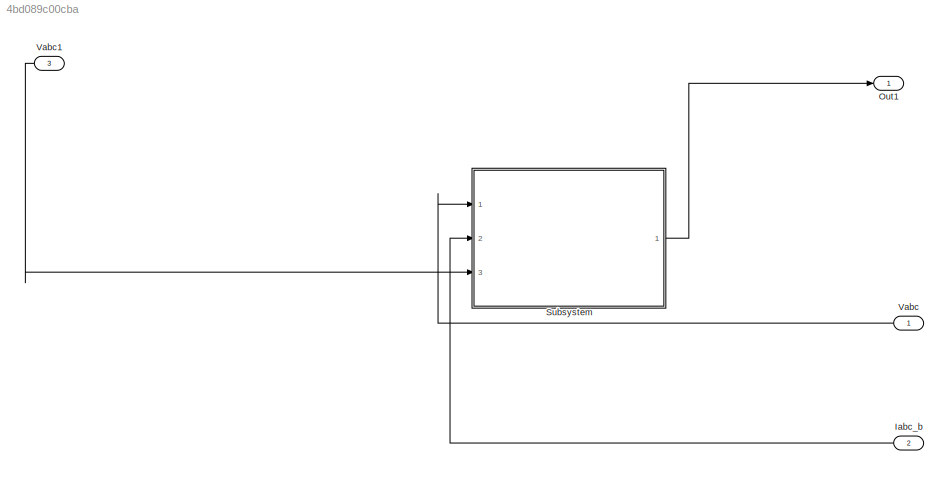
MODEL slx_4bd089c00cba
KIND model
BLOCK [Inport] Iabc_b
  IconDisplay = Port number
  Port = 2
BLOCK [Outport] Out1
  IconDisplay = Port number and signal name
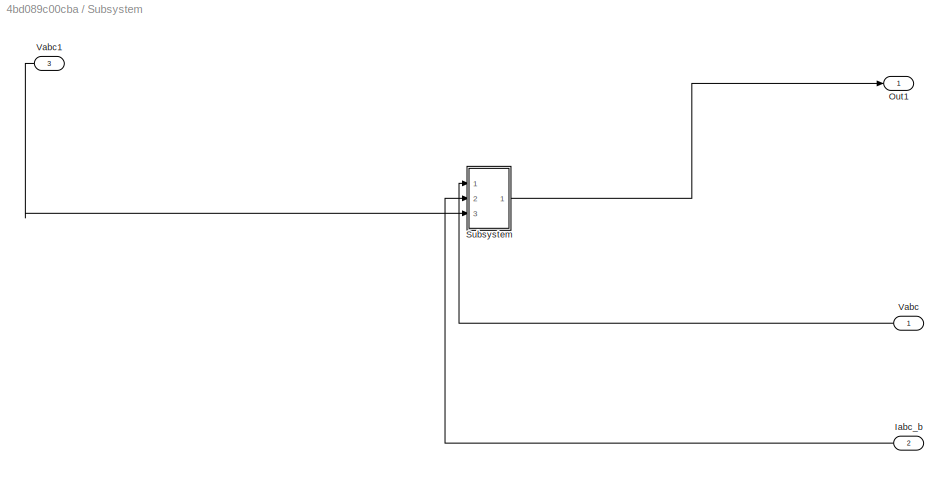
BLOCK [SubSystem] Subsystem
  Ports = [3, 1]
  RequestExecContextInheritance = off
BLOCK [Inport] Subsystem/Iabc_b
  IconDisplay = Port number
  Port = 2
BLOCK [Outport] Subsystem/Out1
  IconDisplay = Port number and signal name
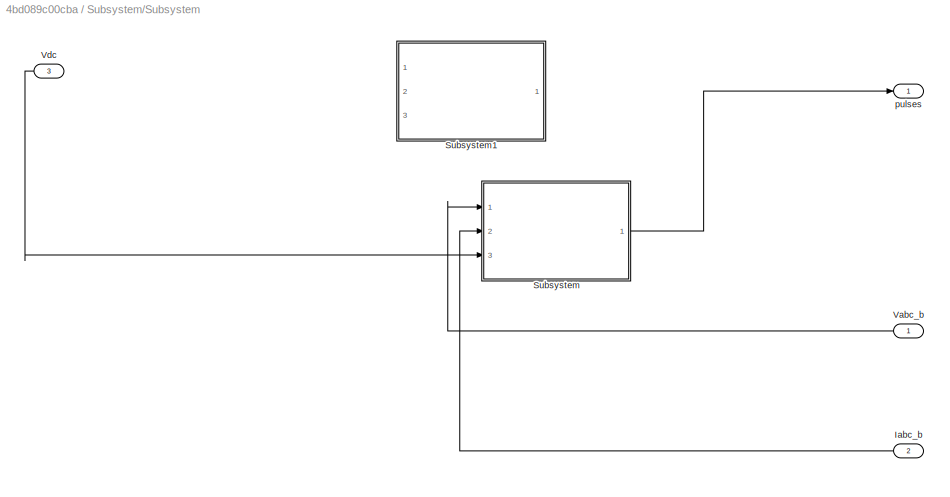
BLOCK [SubSystem] Subsystem/Subsystem
  Ports = [3, 1]
  RequestExecContextInheritance = off
BLOCK [Inport] Subsystem/Subsystem/ Vabc_b
  IconDisplay = Port number
BLOCK [Inport] Subsystem/Subsystem/Iabc_b
  IconDisplay = Port number
  Port = 2
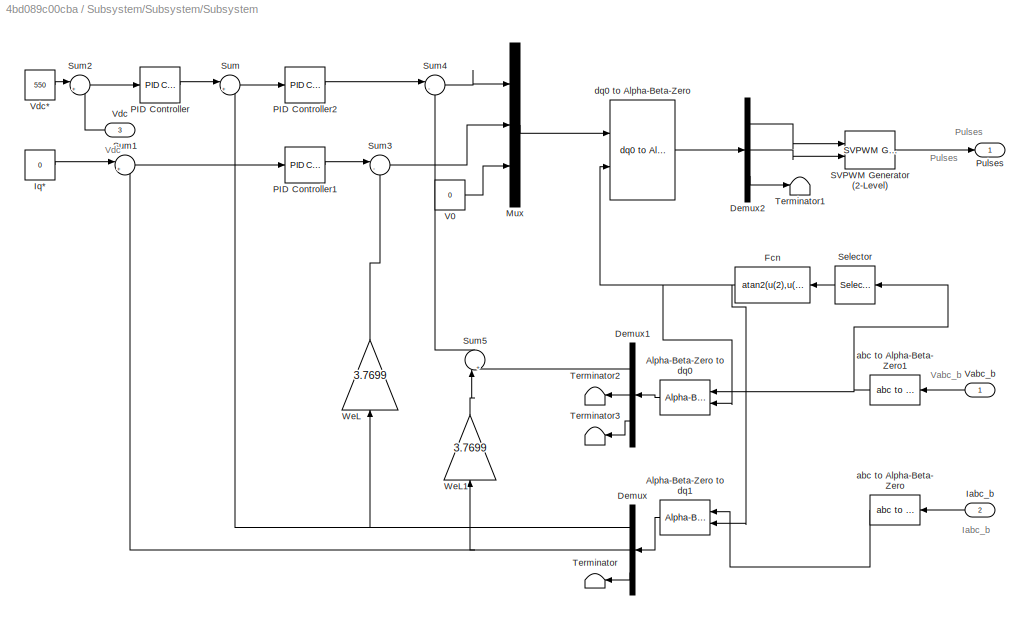
BLOCK [SubSystem] Subsystem/Subsystem/Subsystem
  Ports = [3, 1]
  RequestExecContextInheritance = off
BLOCK [Reference] Subsystem/Subsystem/Subsystem/Alpha-Beta-Zero to dq0  REF=powerlib_meascontrol/Transformations/Alpha-Beta-Zero
to dq0
  Alignment = Aligned with phase A axis
  Ports = [2, 1]
  SourceBlock = powerlib_meascontrol/Transformations/Alpha-Beta-Zero\nto dq0
  SourceType = Alpha-Beta-Zero to dq0 Transformation
BLOCK [Reference] Subsystem/Subsystem/Subsystem/Alpha-Beta-Zero to dq1  REF=powerlib_meascontrol/Transformations/Alpha-Beta-Zero
to dq0
  Alignment = Aligned with phase A axis
  Ports = [2, 1]
  SourceBlock = powerlib_meascontrol/Transformations/Alpha-Beta-Zero\nto dq0
  SourceType = Alpha-Beta-Zero to dq0 Transformation
BLOCK [Demux] Subsystem/Subsystem/Subsystem/Demux
  DisplayOption = bar
  Outputs = 3
  Ports = [1, 3]
BLOCK [Demux] Subsystem/Subsystem/Subsystem/Demux1
  DisplayOption = bar
  Outputs = 3
  Ports = [1, 3]
BLOCK [Demux] Subsystem/Subsystem/Subsystem/Demux2
  DisplayOption = bar
  Outputs = 3
  Ports = [1, 3]
BLOCK [Fcn] Subsystem/Subsystem/Subsystem/Fcn
  Expr = atan2(u(2),u(1))
BLOCK [Inport] Subsystem/Subsystem/Subsystem/Iabc_b
  IconDisplay = Port number
  Port = 2
BLOCK [Constant] Subsystem/Subsystem/Subsystem/Iq*
  Value = 0
BLOCK [Mux] Subsystem/Subsystem/Subsystem/Mux
  DisplayOption = bar
  Inputs = 3
  Ports = [3, 1]
BLOCK [Reference] Subsystem/Subsystem/Subsystem/PID Controller  REF=simulink/Continuous/PID Controller
  AntiWindupMode = none
  Controller = PI
  D = 0
  DOutDataTypeStr = Inherit: Inherit via internal rule
  DOutMax = []
  DOutMin = []
  DParamDataTypeStr = Inherit: Inherit via internal rule
  DParamMax = []
  DParamMin = []
  ExternalReset = none
  FilterContinuousStateAttributes = ''
  FilterMethod = Forward Euler
  FilterOutDataTypeStr = Inherit: Inherit via internal rule
  FilterOutMax = []
  FilterOutMin = []
  FilterRTWStateStorageClass = Auto
  FilterStateMustResolveToSignalObject = off
  Form = Parallel
  I = 1
  IOutDataTypeStr = Inherit: Inherit via internal rule
  IOutMax = []
  IOutMin = []
  IParamDataTypeStr = Inherit: Inherit via internal rule
  IParamMax = []
  IParamMin = []
  IgnoreLimit = off
  InitialConditionForFilter = 0
  InitialConditionForIntegrator = 0
  InitialConditionSource = internal
  IntegratorContinuousStateAttributes = ''
  IntegratorMethod = Forward Euler
  IntegratorOutDataTypeStr = Inherit: Inherit via internal rule
  IntegratorOutMax = []
  IntegratorOutMin = []
  IntegratorRTWStateStorageClass = Auto
  IntegratorStateMustResolveToSignalObject = off
  Kb = 1
  KbOutDataTypeStr = Inherit: Inherit via internal rule
  KbOutMax = []
  KbOutMin = []
  KbParamDataTypeStr = Inherit: Inherit via internal rule
  KbParamMax = []
  KbParamMin = []
  Kt = 1
  KtOutDataTypeStr = Inherit: Inherit via internal rule
  KtOutMax = []
  KtOutMin = []
  KtParamDataTypeStr = Inherit: Inherit via internal rule
  KtParamMax = []
  KtParamMin = []
  LimitOutput = off
  LinearizeAsGain = on
  LockScale = off
  LowerSaturationLimit = -inf
  N = 100
  NOutDataTypeStr = Inherit: Inherit via internal rule
  NOutMax = []
  NOutMin = []
  NParamDataTypeStr = Inherit: Inherit via internal rule
  NParamMax = []
  NParamMin = []
  P = 1
  POutDataTypeStr = Inherit: Inherit via internal rule
  POutMax = []
  POutMin = []
  PParamDataTypeStr = Inherit: Inherit via internal rule
  PParamMax = []
  PParamMin = []
  Ports = [1, 1]
  RndMeth = Floor
  SampleTime = 1
  SaturateOnIntegerOverflow = off
  SaturationOutDataTypeStr = Inherit: Same as input
  SaturationOutMax = []
  SaturationOutMin = []
  SourceBlock = simulink/Continuous/PID Controller
  SourceType = PID 1dof
  SumAccumDataTypeStr = Inherit: Inherit via internal rule
  SumDAccumDataTypeStr = Inherit: Inherit via internal rule
  SumDOutDataTypeStr = Inherit: Inherit via internal rule
  SumDOutMax = []
  SumDOutMin = []
  SumI1AccumDataTypeStr = Inherit: Inherit via internal rule
  SumI1OutDataTypeStr = Inherit: Inherit via internal rule
  SumI1OutMax = []
  SumI1OutMin = []
  SumI2AccumDataTypeStr = Inherit: Inherit via internal rule
  SumI2OutDataTypeStr = Inherit: Inherit via internal rule
  SumI2OutMax = []
  SumI2OutMin = []
  SumI3AccumDataTypeStr = Inherit: Inherit via internal rule
  SumI3OutDataTypeStr = Inherit: Inherit via internal rule
  SumI3OutMax = []
  SumI3OutMin = []
  SumOutDataTypeStr = Inherit: Inherit via internal rule
  SumOutMax = []
  SumOutMin = []
  TimeDomain = Continuous-time
  TrackingMode = off
  UpperSaturationLimit = inf
  ZeroCross = on
BLOCK [Reference] Subsystem/Subsystem/Subsystem/PID Controller1  REF=simulink/Continuous/PID Controller
  AntiWindupMode = none
  Controller = PI
  D = 0
  DOutDataTypeStr = Inherit: Inherit via internal rule
  DOutMax = []
  DOutMin = []
  DParamDataTypeStr = Inherit: Inherit via internal rule
  DParamMax = []
  DParamMin = []
  ExternalReset = none
  FilterContinuousStateAttributes = ''
  FilterMethod = Forward Euler
  FilterOutDataTypeStr = Inherit: Inherit via internal rule
  FilterOutMax = []
  FilterOutMin = []
  FilterRTWStateStorageClass = Auto
  FilterStateMustResolveToSignalObject = off
  Form = Parallel
  I = 1
  IOutDataTypeStr = Inherit: Inherit via internal rule
  IOutMax = []
  IOutMin = []
  IParamDataTypeStr = Inherit: Inherit via internal rule
  IParamMax = []
  IParamMin = []
  IgnoreLimit = off
  InitialConditionForFilter = 0
  InitialConditionForIntegrator = 0
  InitialConditionSource = internal
  IntegratorContinuousStateAttributes = ''
  IntegratorMethod = Forward Euler
  IntegratorOutDataTypeStr = Inherit: Inherit via internal rule
  IntegratorOutMax = []
  IntegratorOutMin = []
  IntegratorRTWStateStorageClass = Auto
  IntegratorStateMustResolveToSignalObject = off
  Kb = 1
  KbOutDataTypeStr = Inherit: Inherit via internal rule
  KbOutMax = []
  KbOutMin = []
  KbParamDataTypeStr = Inherit: Inherit via internal rule
  KbParamMax = []
  KbParamMin = []
  Kt = 1
  KtOutDataTypeStr = Inherit: Inherit via internal rule
  KtOutMax = []
  KtOutMin = []
  KtParamDataTypeStr = Inherit: Inherit via internal rule
  KtParamMax = []
  KtParamMin = []
  LimitOutput = off
  LinearizeAsGain = on
  LockScale = off
  LowerSaturationLimit = -inf
  N = 100
  NOutDataTypeStr = Inherit: Inherit via internal rule
  NOutMax = []
  NOutMin = []
  NParamDataTypeStr = Inherit: Inherit via internal rule
  NParamMax = []
  NParamMin = []
  P = 1
  POutDataTypeStr = Inherit: Inherit via internal rule
  POutMax = []
  POutMin = []
  PParamDataTypeStr = Inherit: Inherit via internal rule
  PParamMax = []
  PParamMin = []
  Ports = [1, 1]
  RndMeth = Floor
  SampleTime = 1
  SaturateOnIntegerOverflow = off
  SaturationOutDataTypeStr = Inherit: Same as input
  SaturationOutMax = []
  SaturationOutMin = []
  SourceBlock = simulink/Continuous/PID Controller
  SourceType = PID 1dof
  SumAccumDataTypeStr = Inherit: Inherit via internal rule
  SumDAccumDataTypeStr = Inherit: Inherit via internal rule
  SumDOutDataTypeStr = Inherit: Inherit via internal rule
  SumDOutMax = []
  SumDOutMin = []
  SumI1AccumDataTypeStr = Inherit: Inherit via internal rule
  SumI1OutDataTypeStr = Inherit: Inherit via internal rule
  SumI1OutMax = []
  SumI1OutMin = []
  SumI2AccumDataTypeStr = Inherit: Inherit via internal rule
  SumI2OutDataTypeStr = Inherit: Inherit via internal rule
  SumI2OutMax = []
  SumI2OutMin = []
  SumI3AccumDataTypeStr = Inherit: Inherit via internal rule
  SumI3OutDataTypeStr = Inherit: Inherit via internal rule
  SumI3OutMax = []
  SumI3OutMin = []
  SumOutDataTypeStr = Inherit: Inherit via internal rule
  SumOutMax = []
  SumOutMin = []
  TimeDomain = Continuous-time
  TrackingMode = off
  UpperSaturationLimit = inf
  ZeroCross = on
BLOCK [Reference] Subsystem/Subsystem/Subsystem/PID Controller2  REF=simulink/Continuous/PID Controller
  AntiWindupMode = none
  Controller = PI
  D = 0
  DOutDataTypeStr = Inherit: Inherit via internal rule
  DOutMax = []
  DOutMin = []
  DParamDataTypeStr = Inherit: Inherit via internal rule
  DParamMax = []
  DParamMin = []
  ExternalReset = none
  FilterContinuousStateAttributes = ''
  FilterMethod = Forward Euler
  FilterOutDataTypeStr = Inherit: Inherit via internal rule
  FilterOutMax = []
  FilterOutMin = []
  FilterRTWStateStorageClass = Auto
  FilterStateMustResolveToSignalObject = off
  Form = Parallel
  I = 1
  IOutDataTypeStr = Inherit: Inherit via internal rule
  IOutMax = []
  IOutMin = []
  IParamDataTypeStr = Inherit: Inherit via internal rule
  IParamMax = []
  IParamMin = []
  IgnoreLimit = off
  InitialConditionForFilter = 0
  InitialConditionForIntegrator = 0
  InitialConditionSource = internal
  IntegratorContinuousStateAttributes = ''
  IntegratorMethod = Forward Euler
  IntegratorOutDataTypeStr = Inherit: Inherit via internal rule
  IntegratorOutMax = []
  IntegratorOutMin = []
  IntegratorRTWStateStorageClass = Auto
  IntegratorStateMustResolveToSignalObject = off
  Kb = 1
  KbOutDataTypeStr = Inherit: Inherit via internal rule
  KbOutMax = []
  KbOutMin = []
  KbParamDataTypeStr = Inherit: Inherit via internal rule
  KbParamMax = []
  KbParamMin = []
  Kt = 1
  KtOutDataTypeStr = Inherit: Inherit via internal rule
  KtOutMax = []
  KtOutMin = []
  KtParamDataTypeStr = Inherit: Inherit via internal rule
  KtParamMax = []
  KtParamMin = []
  LimitOutput = off
  LinearizeAsGain = on
  LockScale = off
  LowerSaturationLimit = -inf
  N = 100
  NOutDataTypeStr = Inherit: Inherit via internal rule
  NOutMax = []
  NOutMin = []
  NParamDataTypeStr = Inherit: Inherit via internal rule
  NParamMax = []
  NParamMin = []
  P = 1
  POutDataTypeStr = Inherit: Inherit via internal rule
  POutMax = []
  POutMin = []
  PParamDataTypeStr = Inherit: Inherit via internal rule
  PParamMax = []
  PParamMin = []
  Ports = [1, 1]
  RndMeth = Floor
  SampleTime = 1
  SaturateOnIntegerOverflow = off
  SaturationOutDataTypeStr = Inherit: Same as input
  SaturationOutMax = []
  SaturationOutMin = []
  SourceBlock = simulink/Continuous/PID Controller
  SourceType = PID 1dof
  SumAccumDataTypeStr = Inherit: Inherit via internal rule
  SumDAccumDataTypeStr = Inherit: Inherit via internal rule
  SumDOutDataTypeStr = Inherit: Inherit via internal rule
  SumDOutMax = []
  SumDOutMin = []
  SumI1AccumDataTypeStr = Inherit: Inherit via internal rule
  SumI1OutDataTypeStr = Inherit: Inherit via internal rule
  SumI1OutMax = []
  SumI1OutMin = []
  SumI2AccumDataTypeStr = Inherit: Inherit via internal rule
  SumI2OutDataTypeStr = Inherit: Inherit via internal rule
  SumI2OutMax = []
  SumI2OutMin = []
  SumI3AccumDataTypeStr = Inherit: Inherit via internal rule
  SumI3OutDataTypeStr = Inherit: Inherit via internal rule
  SumI3OutMax = []
  SumI3OutMin = []
  SumOutDataTypeStr = Inherit: Inherit via internal rule
  SumOutMax = []
  SumOutMin = []
  TimeDomain = Continuous-time
  TrackingMode = off
  UpperSaturationLimit = inf
  ZeroCross = on
BLOCK [Outport] Subsystem/Subsystem/Subsystem/Pulses
  IconDisplay = Port number
BLOCK [Reference] Subsystem/Subsystem/Subsystem/SVPWM Generator (2-Level)  REF=powerlib_meascontrol/Pulse & Signal
Generators/SVPWM Generator
(2-Level)
  Fc = 27*50
  InputType = alpha-beta components
  ParUref = [0.8 -30 50]
  Ports = [2, 1]
  SourceBlock = powerlib_meascontrol/Pulse & Signal\nGenerators/SVPWM Generator\n(2-Level)
  SourceType = SVPWM Generator (2-Level)
  SwitchingPattern = Pattern #1
  Ts = 0
BLOCK [Selector] Subsystem/Subsystem/Subsystem/Selector
  Indices = [1 2]
  InputPortWidth = 3
  Ports = [1, 1]
BLOCK [Sum] Subsystem/Subsystem/Subsystem/Sum
  IconShape = round
  InputSameDT = off
  Inputs = |+-
  OutDataTypeStr = Inherit: Inherit via internal rule
  Ports = [2, 1]
  SaturateOnIntegerOverflow = off
BLOCK [Sum] Subsystem/Subsystem/Subsystem/Sum1
  IconShape = round
  InputSameDT = off
  Inputs = |+-
  OutDataTypeStr = Inherit: Inherit via internal rule
  Ports = [2, 1]
  SaturateOnIntegerOverflow = off
BLOCK [Sum] Subsystem/Subsystem/Subsystem/Sum2
  IconShape = round
  InputSameDT = off
  Inputs = |+-
  OutDataTypeStr = Inherit: Inherit via internal rule
  Ports = [2, 1]
  SaturateOnIntegerOverflow = off
BLOCK [Sum] Subsystem/Subsystem/Subsystem/Sum3
  IconShape = round
  InputSameDT = off
  Inputs = |--
  OutDataTypeStr = Inherit: Inherit via internal rule
  Ports = [2, 1]
  SaturateOnIntegerOverflow = off
BLOCK [Sum] Subsystem/Subsystem/Subsystem/Sum4
  IconShape = round
  InputSameDT = off
  Inputs = |-+
  OutDataTypeStr = Inherit: Inherit via internal rule
  Ports = [2, 1]
  SaturateOnIntegerOverflow = off
BLOCK [Sum] Subsystem/Subsystem/Subsystem/Sum5
  IconShape = round
  InputSameDT = off
  Inputs = |++
  OutDataTypeStr = Inherit: Inherit via internal rule
  Ports = [2, 1]
  SaturateOnIntegerOverflow = off
BLOCK [Terminator] Subsystem/Subsystem/Subsystem/Terminator
BLOCK [Terminator] Subsystem/Subsystem/Subsystem/Terminator1
BLOCK [Terminator] Subsystem/Subsystem/Subsystem/Terminator2
BLOCK [Terminator] Subsystem/Subsystem/Subsystem/Terminator3
BLOCK [Constant] Subsystem/Subsystem/Subsystem/V0
  Value = 0
BLOCK [Inport] Subsystem/Subsystem/Subsystem/Vabc_b
  IconDisplay = Port number
BLOCK [Inport] Subsystem/Subsystem/Subsystem/Vdc
  IconDisplay = Port number
  Port = 3
BLOCK [Constant] Subsystem/Subsystem/Subsystem/Vdc*
  Value = 550
BLOCK [Gain] Subsystem/Subsystem/Subsystem/WeL
  Gain = 3.7699
  OutDataTypeStr = Inherit: Inherit via internal rule
  ParamDataTypeStr = Inherit: Inherit via internal rule
  SaturateOnIntegerOverflow = off
BLOCK [Gain] Subsystem/Subsystem/Subsystem/WeL1
  Gain = 3.7699
  OutDataTypeStr = Inherit: Inherit via internal rule
  ParamDataTypeStr = Inherit: Inherit via internal rule
  SaturateOnIntegerOverflow = off
BLOCK [Reference] Subsystem/Subsystem/Subsystem/abc to Alpha-Beta-Zero  REF=powerlib_meascontrol/Transformations/abc to
Alpha-Beta-Zero
  Ports = [1, 1]
  SourceBlock = powerlib_meascontrol/Transformations/abc to\nAlpha-Beta-Zero
  SourceType = abc to Alpha-Beta-Zero Transformation
BLOCK [Reference] Subsystem/Subsystem/Subsystem/abc to Alpha-Beta-Zero1  REF=powerlib_meascontrol/Transformations/abc to
Alpha-Beta-Zero
  Ports = [1, 1]
  SourceBlock = powerlib_meascontrol/Transformations/abc to\nAlpha-Beta-Zero
  SourceType = abc to Alpha-Beta-Zero Transformation
BLOCK [Reference] Subsystem/Subsystem/Subsystem/dq0 to Alpha-Beta-Zero  REF=powerlib_meascontrol/Transformations/dq0 to
Alpha-Beta-Zero
  Alignment = 90 degrees behind phase A axis
  Ports = [2, 1]
  SourceBlock = powerlib_meascontrol/Transformations/dq0 to\nAlpha-Beta-Zero
  SourceType = dq0 to Alpha-Beta-Zero Transformation
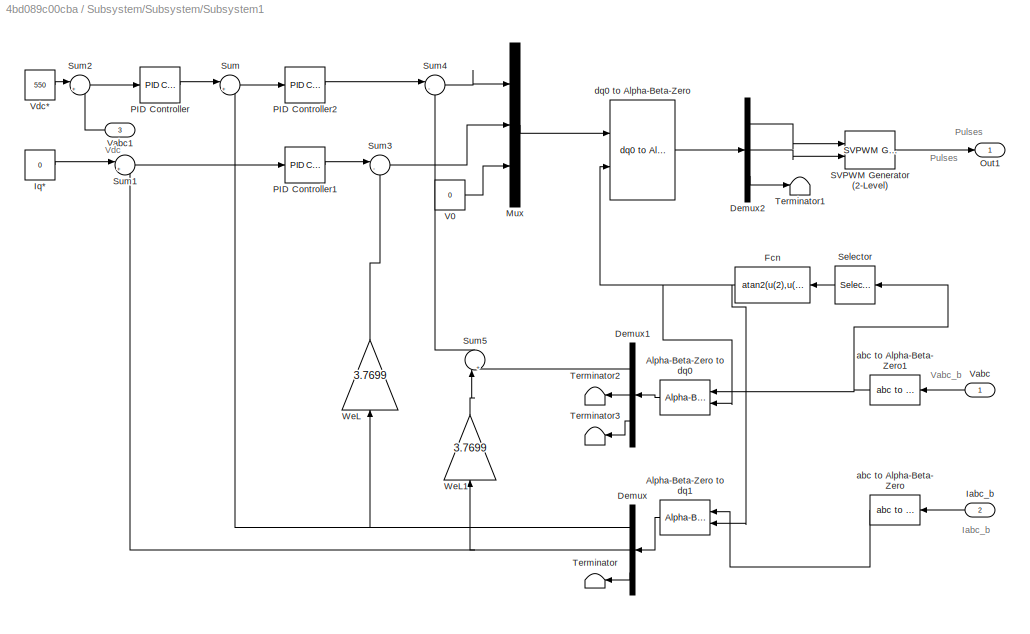
BLOCK [SubSystem] Subsystem/Subsystem/Subsystem1
  Ports = [3, 1]
  RequestExecContextInheritance = off
BLOCK [Reference] Subsystem/Subsystem/Subsystem1/Alpha-Beta-Zero to dq0  REF=powerlib_meascontrol/Transformations/Alpha-Beta-Zero
to dq0
  Alignment = Aligned with phase A axis
  Ports = [2, 1]
  SourceBlock = powerlib_meascontrol/Transformations/Alpha-Beta-Zero\nto dq0
  SourceType = Alpha-Beta-Zero to dq0 Transformation
BLOCK [Reference] Subsystem/Subsystem/Subsystem1/Alpha-Beta-Zero to dq1  REF=powerlib_meascontrol/Transformations/Alpha-Beta-Zero
to dq0
  Alignment = Aligned with phase A axis
  Ports = [2, 1]
  SourceBlock = powerlib_meascontrol/Transformations/Alpha-Beta-Zero\nto dq0
  SourceType = Alpha-Beta-Zero to dq0 Transformation
BLOCK [Demux] Subsystem/Subsystem/Subsystem1/Demux
  DisplayOption = bar
  Outputs = 3
  Ports = [1, 3]
BLOCK [Demux] Subsystem/Subsystem/Subsystem1/Demux1
  DisplayOption = bar
  Outputs = 3
  Ports = [1, 3]
BLOCK [Demux] Subsystem/Subsystem/Subsystem1/Demux2
  DisplayOption = bar
  Outputs = 3
  Ports = [1, 3]
BLOCK [Fcn] Subsystem/Subsystem/Subsystem1/Fcn
  Expr = atan2(u(2),u(1))
BLOCK [Inport] Subsystem/Subsystem/Subsystem1/Iabc_b
  IconDisplay = Port number
  Port = 2
BLOCK [Constant] Subsystem/Subsystem/Subsystem1/Iq*
  Value = 0
BLOCK [Mux] Subsystem/Subsystem/Subsystem1/Mux
  DisplayOption = bar
  Inputs = 3
  Ports = [3, 1]
BLOCK [Outport] Subsystem/Subsystem/Subsystem1/Out1
  IconDisplay = Port number and signal name
BLOCK [Reference] Subsystem/Subsystem/Subsystem1/PID Controller  REF=simulink/Continuous/PID Controller
  AntiWindupMode = none
  Controller = PI
  D = 0
  DOutDataTypeStr = Inherit: Inherit via internal rule
  DOutMax = []
  DOutMin = []
  DParamDataTypeStr = Inherit: Inherit via internal rule
  DParamMax = []
  DParamMin = []
  ExternalReset = none
  FilterContinuousStateAttributes = ''
  FilterMethod = Forward Euler
  FilterOutDataTypeStr = Inherit: Inherit via internal rule
  FilterOutMax = []
  FilterOutMin = []
  FilterRTWStateStorageClass = Auto
  FilterStateMustResolveToSignalObject = off
  Form = Parallel
  I = 1
  IOutDataTypeStr = Inherit: Inherit via internal rule
  IOutMax = []
  IOutMin = []
  IParamDataTypeStr = Inherit: Inherit via internal rule
  IParamMax = []
  IParamMin = []
  IgnoreLimit = off
  InitialConditionForFilter = 0
  InitialConditionForIntegrator = 0
  InitialConditionSource = internal
  IntegratorContinuousStateAttributes = ''
  IntegratorMethod = Forward Euler
  IntegratorOutDataTypeStr = Inherit: Inherit via internal rule
  IntegratorOutMax = []
  IntegratorOutMin = []
  IntegratorRTWStateStorageClass = Auto
  IntegratorStateMustResolveToSignalObject = off
  Kb = 1
  KbOutDataTypeStr = Inherit: Inherit via internal rule
  KbOutMax = []
  KbOutMin = []
  KbParamDataTypeStr = Inherit: Inherit via internal rule
  KbParamMax = []
  KbParamMin = []
  Kt = 1
  KtOutDataTypeStr = Inherit: Inherit via internal rule
  KtOutMax = []
  KtOutMin = []
  KtParamDataTypeStr = Inherit: Inherit via internal rule
  KtParamMax = []
  KtParamMin = []
  LimitOutput = off
  LinearizeAsGain = on
  LockScale = off
  LowerSaturationLimit = -inf
  N = 100
  NOutDataTypeStr = Inherit: Inherit via internal rule
  NOutMax = []
  NOutMin = []
  NParamDataTypeStr = Inherit: Inherit via internal rule
  NParamMax = []
  NParamMin = []
  P = 1
  POutDataTypeStr = Inherit: Inherit via internal rule
  POutMax = []
  POutMin = []
  PParamDataTypeStr = Inherit: Inherit via internal rule
  PParamMax = []
  PParamMin = []
  Ports = [1, 1]
  RndMeth = Floor
  SampleTime = 1
  SaturateOnIntegerOverflow = off
  SaturationOutDataTypeStr = Inherit: Same as input
  SaturationOutMax = []
  SaturationOutMin = []
  SourceBlock = simulink/Continuous/PID Controller
  SourceType = PID 1dof
  SumAccumDataTypeStr = Inherit: Inherit via internal rule
  SumDAccumDataTypeStr = Inherit: Inherit via internal rule
  SumDOutDataTypeStr = Inherit: Inherit via internal rule
  SumDOutMax = []
  SumDOutMin = []
  SumI1AccumDataTypeStr = Inherit: Inherit via internal rule
  SumI1OutDataTypeStr = Inherit: Inherit via internal rule
  SumI1OutMax = []
  SumI1OutMin = []
  SumI2AccumDataTypeStr = Inherit: Inherit via internal rule
  SumI2OutDataTypeStr = Inherit: Inherit via internal rule
  SumI2OutMax = []
  SumI2OutMin = []
  SumI3AccumDataTypeStr = Inherit: Inherit via internal rule
  SumI3OutDataTypeStr = Inherit: Inherit via internal rule
  SumI3OutMax = []
  SumI3OutMin = []
  SumOutDataTypeStr = Inherit: Inherit via internal rule
  SumOutMax = []
  SumOutMin = []
  TimeDomain = Continuous-time
  TrackingMode = off
  UpperSaturationLimit = inf
  ZeroCross = on
BLOCK [Reference] Subsystem/Subsystem/Subsystem1/PID Controller1  REF=simulink/Continuous/PID Controller
  AntiWindupMode = none
  Controller = PI
  D = 0
  DOutDataTypeStr = Inherit: Inherit via internal rule
  DOutMax = []
  DOutMin = []
  DParamDataTypeStr = Inherit: Inherit via internal rule
  DParamMax = []
  DParamMin = []
  ExternalReset = none
  FilterContinuousStateAttributes = ''
  FilterMethod = Forward Euler
  FilterOutDataTypeStr = Inherit: Inherit via internal rule
  FilterOutMax = []
  FilterOutMin = []
  FilterRTWStateStorageClass = Auto
  FilterStateMustResolveToSignalObject = off
  Form = Parallel
  I = 1
  IOutDataTypeStr = Inherit: Inherit via internal rule
  IOutMax = []
  IOutMin = []
  IParamDataTypeStr = Inherit: Inherit via internal rule
  IParamMax = []
  IParamMin = []
  IgnoreLimit = off
  InitialConditionForFilter = 0
  InitialConditionForIntegrator = 0
  InitialConditionSource = internal
  IntegratorContinuousStateAttributes = ''
  IntegratorMethod = Forward Euler
  IntegratorOutDataTypeStr = Inherit: Inherit via internal rule
  IntegratorOutMax = []
  IntegratorOutMin = []
  IntegratorRTWStateStorageClass = Auto
  IntegratorStateMustResolveToSignalObject = off
  Kb = 1
  KbOutDataTypeStr = Inherit: Inherit via internal rule
  KbOutMax = []
  KbOutMin = []
  KbParamDataTypeStr = Inherit: Inherit via internal rule
  KbParamMax = []
  KbParamMin = []
  Kt = 1
  KtOutDataTypeStr = Inherit: Inherit via internal rule
  KtOutMax = []
  KtOutMin = []
  KtParamDataTypeStr = Inherit: Inherit via internal rule
  KtParamMax = []
  KtParamMin = []
  LimitOutput = off
  LinearizeAsGain = on
  LockScale = off
  LowerSaturationLimit = -inf
  N = 100
  NOutDataTypeStr = Inherit: Inherit via internal rule
  NOutMax = []
  NOutMin = []
  NParamDataTypeStr = Inherit: Inherit via internal rule
  NParamMax = []
  NParamMin = []
  P = 1
  POutDataTypeStr = Inherit: Inherit via internal rule
  POutMax = []
  POutMin = []
  PParamDataTypeStr = Inherit: Inherit via internal rule
  PParamMax = []
  PParamMin = []
  Ports = [1, 1]
  RndMeth = Floor
  SampleTime = 1
  SaturateOnIntegerOverflow = off
  SaturationOutDataTypeStr = Inherit: Same as input
  SaturationOutMax = []
  SaturationOutMin = []
  SourceBlock = simulink/Continuous/PID Controller
  SourceType = PID 1dof
  SumAccumDataTypeStr = Inherit: Inherit via internal rule
  SumDAccumDataTypeStr = Inherit: Inherit via internal rule
  SumDOutDataTypeStr = Inherit: Inherit via internal rule
  SumDOutMax = []
  SumDOutMin = []
  SumI1AccumDataTypeStr = Inherit: Inherit via internal rule
  SumI1OutDataTypeStr = Inherit: Inherit via internal rule
  SumI1OutMax = []
  SumI1OutMin = []
  SumI2AccumDataTypeStr = Inherit: Inherit via internal rule
  SumI2OutDataTypeStr = Inherit: Inherit via internal rule
  SumI2OutMax = []
  SumI2OutMin = []
  SumI3AccumDataTypeStr = Inherit: Inherit via internal rule
  SumI3OutDataTypeStr = Inherit: Inherit via internal rule
  SumI3OutMax = []
  SumI3OutMin = []
  SumOutDataTypeStr = Inherit: Inherit via internal rule
  SumOutMax = []
  SumOutMin = []
  TimeDomain = Continuous-time
  TrackingMode = off
  UpperSaturationLimit = inf
  ZeroCross = on
BLOCK [Reference] Subsystem/Subsystem/Subsystem1/PID Controller2  REF=simulink/Continuous/PID Controller
  AntiWindupMode = none
  Controller = PI
  D = 0
  DOutDataTypeStr = Inherit: Inherit via internal rule
  DOutMax = []
  DOutMin = []
  DParamDataTypeStr = Inherit: Inherit via internal rule
  DParamMax = []
  DParamMin = []
  ExternalReset = none
  FilterContinuousStateAttributes = ''
  FilterMethod = Forward Euler
  FilterOutDataTypeStr = Inherit: Inherit via internal rule
  FilterOutMax = []
  FilterOutMin = []
  FilterRTWStateStorageClass = Auto
  FilterStateMustResolveToSignalObject = off
  Form = Parallel
  I = 1
  IOutDataTypeStr = Inherit: Inherit via internal rule
  IOutMax = []
  IOutMin = []
  IParamDataTypeStr = Inherit: Inherit via internal rule
  IParamMax = []
  IParamMin = []
  IgnoreLimit = off
  InitialConditionForFilter = 0
  InitialConditionForIntegrator = 0
  InitialConditionSource = internal
  IntegratorContinuousStateAttributes = ''
  IntegratorMethod = Forward Euler
  IntegratorOutDataTypeStr = Inherit: Inherit via internal rule
  IntegratorOutMax = []
  IntegratorOutMin = []
  IntegratorRTWStateStorageClass = Auto
  IntegratorStateMustResolveToSignalObject = off
  Kb = 1
  KbOutDataTypeStr = Inherit: Inherit via internal rule
  KbOutMax = []
  KbOutMin = []
  KbParamDataTypeStr = Inherit: Inherit via internal rule
  KbParamMax = []
  KbParamMin = []
  Kt = 1
  KtOutDataTypeStr = Inherit: Inherit via internal rule
  KtOutMax = []
  KtOutMin = []
  KtParamDataTypeStr = Inherit: Inherit via internal rule
  KtParamMax = []
  KtParamMin = []
  LimitOutput = off
  LinearizeAsGain = on
  LockScale = off
  LowerSaturationLimit = -inf
  N = 100
  NOutDataTypeStr = Inherit: Inherit via internal rule
  NOutMax = []
  NOutMin = []
  NParamDataTypeStr = Inherit: Inherit via internal rule
  NParamMax = []
  NParamMin = []
  P = 1
  POutDataTypeStr = Inherit: Inherit via internal rule
  POutMax = []
  POutMin = []
  PParamDataTypeStr = Inherit: Inherit via internal rule
  PParamMax = []
  PParamMin = []
  Ports = [1, 1]
  RndMeth = Floor
  SampleTime = 1
  SaturateOnIntegerOverflow = off
  SaturationOutDataTypeStr = Inherit: Same as input
  SaturationOutMax = []
  SaturationOutMin = []
  SourceBlock = simulink/Continuous/PID Controller
  SourceType = PID 1dof
  SumAccumDataTypeStr = Inherit: Inherit via internal rule
  SumDAccumDataTypeStr = Inherit: Inherit via internal rule
  SumDOutDataTypeStr = Inherit: Inherit via internal rule
  SumDOutMax = []
  SumDOutMin = []
  SumI1AccumDataTypeStr = Inherit: Inherit via internal rule
  SumI1OutDataTypeStr = Inherit: Inherit via internal rule
  SumI1OutMax = []
  SumI1OutMin = []
  SumI2AccumDataTypeStr = Inherit: Inherit via internal rule
  SumI2OutDataTypeStr = Inherit: Inherit via internal rule
  SumI2OutMax = []
  SumI2OutMin = []
  SumI3AccumDataTypeStr = Inherit: Inherit via internal rule
  SumI3OutDataTypeStr = Inherit: Inherit via internal rule
  SumI3OutMax = []
  SumI3OutMin = []
  SumOutDataTypeStr = Inherit: Inherit via internal rule
  SumOutMax = []
  SumOutMin = []
  TimeDomain = Continuous-time
  TrackingMode = off
  UpperSaturationLimit = inf
  ZeroCross = on
BLOCK [Reference] Subsystem/Subsystem/Subsystem1/SVPWM Generator (2-Level)  REF=powerlib_meascontrol/Pulse & Signal
Generators/SVPWM Generator
(2-Level)
  Fc = 27*50
  InputType = alpha-beta components
  ParUref = [0.8 -30 50]
  Ports = [2, 1]
  SourceBlock = powerlib_meascontrol/Pulse & Signal\nGenerators/SVPWM Generator\n(2-Level)
  SourceType = SVPWM Generator (2-Level)
  SwitchingPattern = Pattern #1
  Ts = 0
BLOCK [Selector] Subsystem/Subsystem/Subsystem1/Selector
  Indices = [1 2]
  InputPortWidth = 3
  Ports = [1, 1]
BLOCK [Sum] Subsystem/Subsystem/Subsystem1/Sum
  IconShape = round
  InputSameDT = off
  Inputs = |+-
  OutDataTypeStr = Inherit: Inherit via internal rule
  Ports = [2, 1]
  SaturateOnIntegerOverflow = off
BLOCK [Sum] Subsystem/Subsystem/Subsystem1/Sum1
  IconShape = round
  InputSameDT = off
  Inputs = |+-
  OutDataTypeStr = Inherit: Inherit via internal rule
  Ports = [2, 1]
  SaturateOnIntegerOverflow = off
BLOCK [Sum] Subsystem/Subsystem/Subsystem1/Sum2
  IconShape = round
  InputSameDT = off
  Inputs = |+-
  OutDataTypeStr = Inherit: Inherit via internal rule
  Ports = [2, 1]
  SaturateOnIntegerOverflow = off
BLOCK [Sum] Subsystem/Subsystem/Subsystem1/Sum3
  IconShape = round
  InputSameDT = off
  Inputs = |--
  OutDataTypeStr = Inherit: Inherit via internal rule
  Ports = [2, 1]
  SaturateOnIntegerOverflow = off
BLOCK [Sum] Subsystem/Subsystem/Subsystem1/Sum4
  IconShape = round
  InputSameDT = off
  Inputs = |-+
  OutDataTypeStr = Inherit: Inherit via internal rule
  Ports = [2, 1]
  SaturateOnIntegerOverflow = off
BLOCK [Sum] Subsystem/Subsystem/Subsystem1/Sum5
  IconShape = round
  InputSameDT = off
  Inputs = |++
  OutDataTypeStr = Inherit: Inherit via internal rule
  Ports = [2, 1]
  SaturateOnIntegerOverflow = off
BLOCK [Terminator] Subsystem/Subsystem/Subsystem1/Terminator
BLOCK [Terminator] Subsystem/Subsystem/Subsystem1/Terminator1
BLOCK [Terminator] Subsystem/Subsystem/Subsystem1/Terminator2
BLOCK [Terminator] Subsystem/Subsystem/Subsystem1/Terminator3
BLOCK [Constant] Subsystem/Subsystem/Subsystem1/V0
  Value = 0
BLOCK [Inport] Subsystem/Subsystem/Subsystem1/Vabc
  IconDisplay = Port number and signal name
BLOCK [Inport] Subsystem/Subsystem/Subsystem1/Vabc1
  IconDisplay = Port number and signal name
  Port = 3
BLOCK [Constant] Subsystem/Subsystem/Subsystem1/Vdc*
  Value = 550
BLOCK [Gain] Subsystem/Subsystem/Subsystem1/WeL
  Gain = 3.7699
  OutDataTypeStr = Inherit: Inherit via internal rule
  ParamDataTypeStr = Inherit: Inherit via internal rule
  SaturateOnIntegerOverflow = off
BLOCK [Gain] Subsystem/Subsystem/Subsystem1/WeL1
  Gain = 3.7699
  OutDataTypeStr = Inherit: Inherit via internal rule
  ParamDataTypeStr = Inherit: Inherit via internal rule
  SaturateOnIntegerOverflow = off
BLOCK [Reference] Subsystem/Subsystem/Subsystem1/abc to Alpha-Beta-Zero  REF=powerlib_meascontrol/Transformations/abc to
Alpha-Beta-Zero
  Ports = [1, 1]
  SourceBlock = powerlib_meascontrol/Transformations/abc to\nAlpha-Beta-Zero
  SourceType = abc to Alpha-Beta-Zero Transformation
BLOCK [Reference] Subsystem/Subsystem/Subsystem1/abc to Alpha-Beta-Zero1  REF=powerlib_meascontrol/Transformations/abc to
Alpha-Beta-Zero
  Ports = [1, 1]
  SourceBlock = powerlib_meascontrol/Transformations/abc to\nAlpha-Beta-Zero
  SourceType = abc to Alpha-Beta-Zero Transformation
BLOCK [Reference] Subsystem/Subsystem/Subsystem1/dq0 to Alpha-Beta-Zero  REF=powerlib_meascontrol/Transformations/dq0 to
Alpha-Beta-Zero
  Alignment = 90 degrees behind phase A axis
  Ports = [2, 1]
  SourceBlock = powerlib_meascontrol/Transformations/dq0 to\nAlpha-Beta-Zero
  SourceType = dq0 to Alpha-Beta-Zero Transformation
BLOCK [Inport] Subsystem/Subsystem/Vdc
  IconDisplay = Port number
  Port = 3
BLOCK [Outport] Subsystem/Subsystem/pulses
  IconDisplay = Port number
BLOCK [Inport] Subsystem/Vabc
  IconDisplay = Port number and signal name
BLOCK [Inport] Subsystem/Vabc1
  IconDisplay = Port number and signal name
  Port = 3
BLOCK [Inport] Vabc
  IconDisplay = Port number and signal name
BLOCK [Inport] Vabc1
  IconDisplay = Port number and signal name
  Port = 3
ANNOTATION Subsystem/Subsystem/Subsystem: Iabc_b
ANNOTATION Subsystem/Subsystem/Subsystem: Pulses
ANNOTATION Subsystem/Subsystem/Subsystem: Vabc_b
ANNOTATION Subsystem/Subsystem/Subsystem: Vdc
ANNOTATION Subsystem/Subsystem/Subsystem1: Iabc_b
ANNOTATION Subsystem/Subsystem/Subsystem1: Pulses
ANNOTATION Subsystem/Subsystem/Subsystem1: Vabc_b
ANNOTATION Subsystem/Subsystem/Subsystem1: Vdc
LINE Iabc_b:1 -> Subsystem:2
LINE Subsystem/Iabc_b:1 -> Subsystem/Subsystem:2
LINE Subsystem/Subsystem/ Vabc_b:1 -> Subsystem/Subsystem/Subsystem:1
LINE Subsystem/Subsystem/Iabc_b:1 -> Subsystem/Subsystem/Subsystem:2
LINE Subsystem/Subsystem/Subsystem/Alpha-Beta-Zero to dq0:1 -> Subsystem/Subsystem/Subsystem/Demux1:1
LINE Subsystem/Subsystem/Subsystem/Alpha-Beta-Zero to dq1:1 -> Subsystem/Subsystem/Subsystem/Demux:1
LINE Subsystem/Subsystem/Subsystem/Demux1:1 -> Subsystem/Subsystem/Subsystem/Sum5:2
LINE Subsystem/Subsystem/Subsystem/Demux1:2 -> Subsystem/Subsystem/Subsystem/Terminator2:1
LINE Subsystem/Subsystem/Subsystem/Demux1:3 -> Subsystem/Subsystem/Subsystem/Terminator3:1
LINE Subsystem/Subsystem/Subsystem/Demux2:1 -> Subsystem/Subsystem/Subsystem/SVPWM Generator (2-Level):1
LINE Subsystem/Subsystem/Subsystem/Demux2:2 -> Subsystem/Subsystem/Subsystem/SVPWM Generator (2-Level):2
LINE Subsystem/Subsystem/Subsystem/Demux2:3 -> Subsystem/Subsystem/Subsystem/Terminator1:1
NET Subsystem/Subsystem/Subsystem/Demux:1 -> Subsystem/Subsystem/Subsystem/Sum:2, Subsystem/Subsystem/Subsystem/WeL:1
NET Subsystem/Subsystem/Subsystem/Demux:2 -> Subsystem/Subsystem/Subsystem/Sum1:2, Subsystem/Subsystem/Subsystem/WeL1:1
LINE Subsystem/Subsystem/Subsystem/Demux:3 -> Subsystem/Subsystem/Subsystem/Terminator:1
NET Subsystem/Subsystem/Subsystem/Fcn:1 -> Subsystem/Subsystem/Subsystem/Alpha-Beta-Zero to dq0:2, Subsystem/Subsystem/Subsystem/Alpha-Beta-Zero to dq1:2, Subsystem/Subsystem/Subsystem/dq0 to Alpha-Beta-Zero:2
LINE Subsystem/Subsystem/Subsystem/Iabc_b:1 -> Subsystem/Subsystem/Subsystem/abc to Alpha-Beta-Zero:1
LINE Subsystem/Subsystem/Subsystem/Iq*:1 -> Subsystem/Subsystem/Subsystem/Sum1:1
LINE Subsystem/Subsystem/Subsystem/Mux:1 -> Subsystem/Subsystem/Subsystem/dq0 to Alpha-Beta-Zero:1
LINE Subsystem/Subsystem/Subsystem/PID Controller1:1 -> Subsystem/Subsystem/Subsystem/Sum3:1
LINE Subsystem/Subsystem/Subsystem/PID Controller2:1 -> Subsystem/Subsystem/Subsystem/Sum4:1
LINE Subsystem/Subsystem/Subsystem/PID Controller:1 -> Subsystem/Subsystem/Subsystem/Sum:1
LINE Subsystem/Subsystem/Subsystem/SVPWM Generator (2-Level):1 -> Subsystem/Subsystem/Subsystem/Pulses:1
LINE Subsystem/Subsystem/Subsystem/Selector:1 -> Subsystem/Subsystem/Subsystem/Fcn:1
LINE Subsystem/Subsystem/Subsystem/Sum1:1 -> Subsystem/Subsystem/Subsystem/PID Controller1:1
LINE Subsystem/Subsystem/Subsystem/Sum2:1 -> Subsystem/Subsystem/Subsystem/PID Controller:1
LINE Subsystem/Subsystem/Subsystem/Sum3:1 -> Subsystem/Subsystem/Subsystem/Mux:2
LINE Subsystem/Subsystem/Subsystem/Sum4:1 -> Subsystem/Subsystem/Subsystem/Mux:1
LINE Subsystem/Subsystem/Subsystem/Sum5:1 -> Subsystem/Subsystem/Subsystem/Sum4:2
LINE Subsystem/Subsystem/Subsystem/Sum:1 -> Subsystem/Subsystem/Subsystem/PID Controller2:1
LINE Subsystem/Subsystem/Subsystem/V0:1 -> Subsystem/Subsystem/Subsystem/Mux:3
LINE Subsystem/Subsystem/Subsystem/Vabc_b:1 -> Subsystem/Subsystem/Subsystem/abc to Alpha-Beta-Zero1:1
LINE Subsystem/Subsystem/Subsystem/Vdc*:1 -> Subsystem/Subsystem/Subsystem/Sum2:1
LINE Subsystem/Subsystem/Subsystem/Vdc:1 -> Subsystem/Subsystem/Subsystem/Sum2:2
LINE Subsystem/Subsystem/Subsystem/WeL1:1 -> Subsystem/Subsystem/Subsystem/Sum5:1
LINE Subsystem/Subsystem/Subsystem/WeL:1 -> Subsystem/Subsystem/Subsystem/Sum3:2
NET Subsystem/Subsystem/Subsystem/abc to Alpha-Beta-Zero1:1 -> Subsystem/Subsystem/Subsystem/Alpha-Beta-Zero to dq0:1, Subsystem/Subsystem/Subsystem/Selector:1
LINE Subsystem/Subsystem/Subsystem/abc to Alpha-Beta-Zero:1 -> Subsystem/Subsystem/Subsystem/Alpha-Beta-Zero to dq1:1
LINE Subsystem/Subsystem/Subsystem/dq0 to Alpha-Beta-Zero:1 -> Subsystem/Subsystem/Subsystem/Demux2:1
LINE Subsystem/Subsystem/Subsystem1/Alpha-Beta-Zero to dq0:1 -> Subsystem/Subsystem/Subsystem1/Demux1:1
LINE Subsystem/Subsystem/Subsystem1/Alpha-Beta-Zero to dq1:1 -> Subsystem/Subsystem/Subsystem1/Demux:1
LINE Subsystem/Subsystem/Subsystem1/Demux1:1 -> Subsystem/Subsystem/Subsystem1/Sum5:2
LINE Subsystem/Subsystem/Subsystem1/Demux1:2 -> Subsystem/Subsystem/Subsystem1/Terminator2:1
LINE Subsystem/Subsystem/Subsystem1/Demux1:3 -> Subsystem/Subsystem/Subsystem1/Terminator3:1
LINE Subsystem/Subsystem/Subsystem1/Demux2:1 -> Subsystem/Subsystem/Subsystem1/SVPWM Generator (2-Level):1
LINE Subsystem/Subsystem/Subsystem1/Demux2:2 -> Subsystem/Subsystem/Subsystem1/SVPWM Generator (2-Level):2
LINE Subsystem/Subsystem/Subsystem1/Demux2:3 -> Subsystem/Subsystem/Subsystem1/Terminator1:1
NET Subsystem/Subsystem/Subsystem1/Demux:1 -> Subsystem/Subsystem/Subsystem1/Sum:2, Subsystem/Subsystem/Subsystem1/WeL:1
NET Subsystem/Subsystem/Subsystem1/Demux:2 -> Subsystem/Subsystem/Subsystem1/Sum1:2, Subsystem/Subsystem/Subsystem1/WeL1:1
LINE Subsystem/Subsystem/Subsystem1/Demux:3 -> Subsystem/Subsystem/Subsystem1/Terminator:1
NET Subsystem/Subsystem/Subsystem1/Fcn:1 -> Subsystem/Subsystem/Subsystem1/Alpha-Beta-Zero to dq0:2, Subsystem/Subsystem/Subsystem1/Alpha-Beta-Zero to dq1:2, Subsystem/Subsystem/Subsystem1/dq0 to Alpha-Beta-Zero:2
LINE Subsystem/Subsystem/Subsystem1/Iabc_b:1 -> Subsystem/Subsystem/Subsystem1/abc to Alpha-Beta-Zero:1
LINE Subsystem/Subsystem/Subsystem1/Iq*:1 -> Subsystem/Subsystem/Subsystem1/Sum1:1
LINE Subsystem/Subsystem/Subsystem1/Mux:1 -> Subsystem/Subsystem/Subsystem1/dq0 to Alpha-Beta-Zero:1
LINE Subsystem/Subsystem/Subsystem1/PID Controller1:1 -> Subsystem/Subsystem/Subsystem1/Sum3:1
LINE Subsystem/Subsystem/Subsystem1/PID Controller2:1 -> Subsystem/Subsystem/Subsystem1/Sum4:1
LINE Subsystem/Subsystem/Subsystem1/PID Controller:1 -> Subsystem/Subsystem/Subsystem1/Sum:1
LINE Subsystem/Subsystem/Subsystem1/SVPWM Generator (2-Level):1 -> Subsystem/Subsystem/Subsystem1/Out1:1
LINE Subsystem/Subsystem/Subsystem1/Selector:1 -> Subsystem/Subsystem/Subsystem1/Fcn:1
LINE Subsystem/Subsystem/Subsystem1/Sum1:1 -> Subsystem/Subsystem/Subsystem1/PID Controller1:1
LINE Subsystem/Subsystem/Subsystem1/Sum2:1 -> Subsystem/Subsystem/Subsystem1/PID Controller:1
LINE Subsystem/Subsystem/Subsystem1/Sum3:1 -> Subsystem/Subsystem/Subsystem1/Mux:2
LINE Subsystem/Subsystem/Subsystem1/Sum4:1 -> Subsystem/Subsystem/Subsystem1/Mux:1
LINE Subsystem/Subsystem/Subsystem1/Sum5:1 -> Subsystem/Subsystem/Subsystem1/Sum4:2
LINE Subsystem/Subsystem/Subsystem1/Sum:1 -> Subsystem/Subsystem/Subsystem1/PID Controller2:1
LINE Subsystem/Subsystem/Subsystem1/V0:1 -> Subsystem/Subsystem/Subsystem1/Mux:3
LINE Subsystem/Subsystem/Subsystem1/Vabc1:1 -> Subsystem/Subsystem/Subsystem1/Sum2:2
LINE Subsystem/Subsystem/Subsystem1/Vabc:1 -> Subsystem/Subsystem/Subsystem1/abc to Alpha-Beta-Zero1:1
LINE Subsystem/Subsystem/Subsystem1/Vdc*:1 -> Subsystem/Subsystem/Subsystem1/Sum2:1
LINE Subsystem/Subsystem/Subsystem1/WeL1:1 -> Subsystem/Subsystem/Subsystem1/Sum5:1
LINE Subsystem/Subsystem/Subsystem1/WeL:1 -> Subsystem/Subsystem/Subsystem1/Sum3:2
NET Subsystem/Subsystem/Subsystem1/abc to Alpha-Beta-Zero1:1 -> Subsystem/Subsystem/Subsystem1/Alpha-Beta-Zero to dq0:1, Subsystem/Subsystem/Subsystem1/Selector:1
LINE Subsystem/Subsystem/Subsystem1/abc to Alpha-Beta-Zero:1 -> Subsystem/Subsystem/Subsystem1/Alpha-Beta-Zero to dq1:1
LINE Subsystem/Subsystem/Subsystem1/dq0 to Alpha-Beta-Zero:1 -> Subsystem/Subsystem/Subsystem1/Demux2:1
LINE Subsystem/Subsystem/Subsystem:1 -> Subsystem/Subsystem/pulses:1
LINE Subsystem/Subsystem/Vdc:1 -> Subsystem/Subsystem/Subsystem:3
LINE Subsystem/Subsystem:1 -> Subsystem/Out1:1
LINE Subsystem/Vabc1:1 -> Subsystem/Subsystem:3
LINE Subsystem/Vabc:1 -> Subsystem/Subsystem:1
LINE Subsystem:1 -> Out1:1
LINE Vabc1:1 -> Subsystem:3
LINE Vabc:1 -> Subsystem:1
note: NET lines group one-source signal fan-out (src -> all destinations, sorted); 1:1 wires keep LINE
